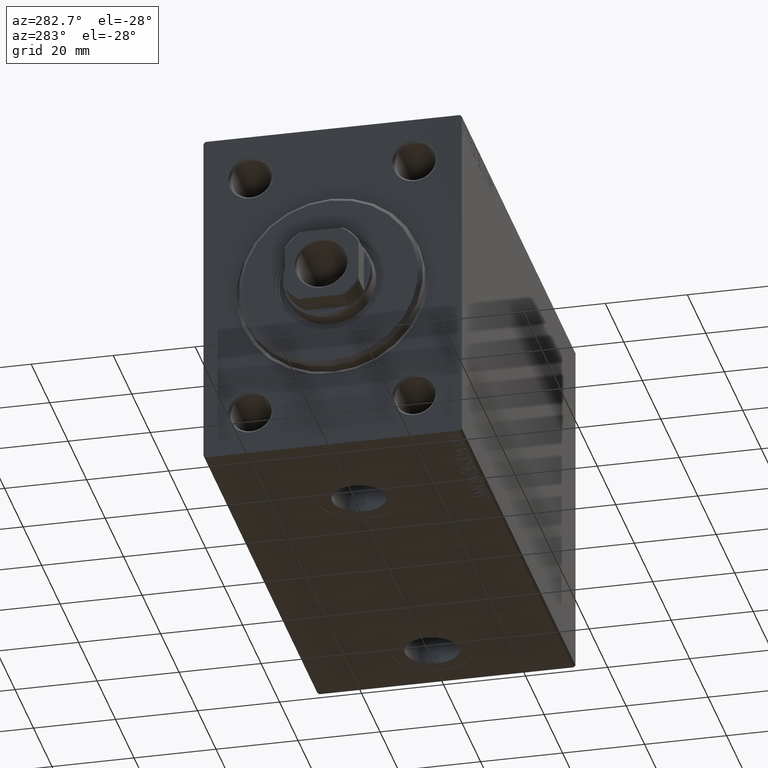
[diagram: clean part render]
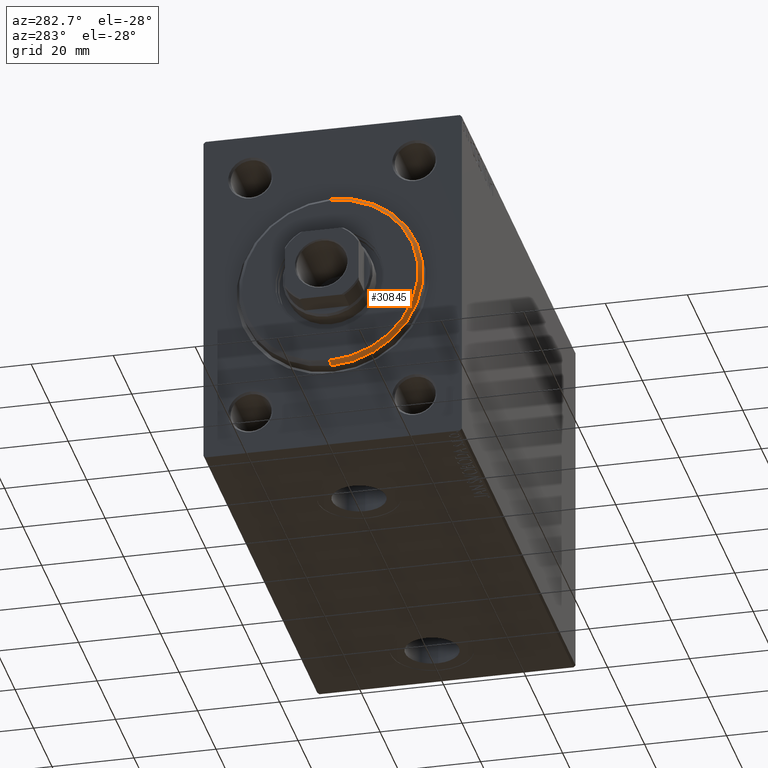
[diagram: same view with one face highlighted and labeled with its STEP entity id]
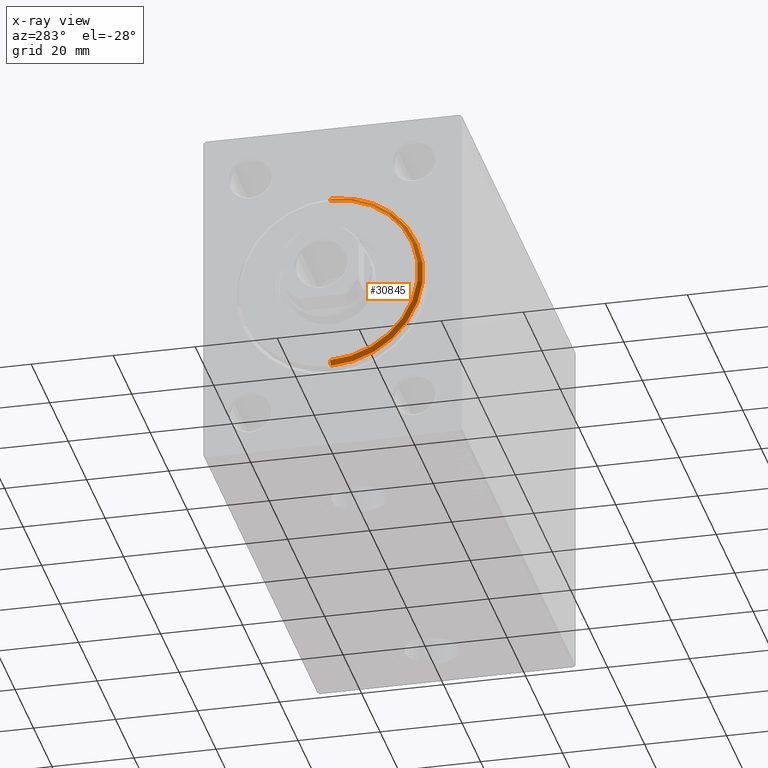
[diagram: x-ray of the same camera — body ghosted, the highlighted face saturated]
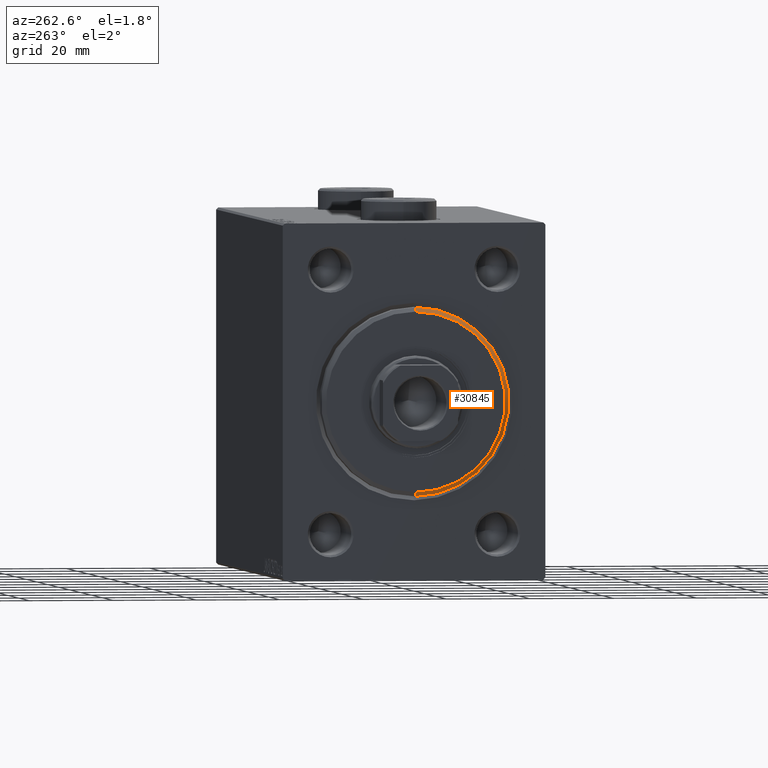
[diagram: same view with one face highlighted and labeled with its STEP entity id]
A machine part, auxiliary view. The second image highlights one B-rep face of the part: STEP entity #30845.
The next image is the same camera in x-ray: the body ghosted, the highlighted face saturated — about 0% of this face is hidden behind the body in this view.
A second angle (auxiliary view) of the same face is appended — the face is thin or edge-on in the first view.
In plain terms, the highlighted conical surface has half-angle 45 deg.
Its self-contained STEP definition (entity closure, byte-faithful):
#737 = ORIENTED_EDGE ( 'NONE', *, *, #12126, .F. ) ;
#1910 = LINE ( 'NONE', #2364, #21035 ) ;
#2302 = CARTESIAN_POINT ( 'NONE',  ( 1.999999999999999112, 2.755455298081545172E-15, -22.50000000000000355 ) ) ;
#2364 = CARTESIAN_POINT ( 'NONE',  ( 3.000000000000000000, 2.632990618166810024E-15, -21.50000000000000355 ) ) ;
#2630 = CARTESIAN_POINT ( 'NONE',  ( 3.000000000000000000, 0.000000000000000000, 0.000000000000000000 ) ) ;
#3177 = DIRECTION ( 'NONE',  ( 0.000000000000000000, 0.000000000000000000, 1.000000000000000000 ) ) ;
#3702 = DIRECTION ( 'NONE',  ( -1.000000000000000000, 0.000000000000000000, 0.000000000000000000 ) ) ;
#3743 = VERTEX_POINT ( 'NONE', #29197 ) ;
#4864 = VERTEX_POINT ( 'NONE', #25470 ) ;
#7084 = CARTESIAN_POINT ( 'NONE',  ( 3.000000000000000000, 0.000000000000000000, 0.000000000000000000 ) ) ;
#7151 = CARTESIAN_POINT ( 'NONE',  ( 1.999999999999999112, 0.000000000000000000, 0.000000000000000000 ) ) ;
#8538 = EDGE_CURVE ( 'NONE', #4864, #3743, #11522, .T. ) ;
#9426 = CIRCLE ( 'NONE', #21155, 22.50000000000000355 ) ;
#11522 = LINE ( 'NONE', #25555, #32104 ) ;
#12126 = EDGE_CURVE ( 'NONE', #3743, #33126, #9426, .T. ) ;
#13786 = AXIS2_PLACEMENT_3D ( 'NONE', #7084, #45557, #3177 ) ;
#16669 = DIRECTION ( 'NONE',  ( 1.000000000000000000, -0.000000000000000000, 0.000000000000000000 ) ) ;
#17114 = DIRECTION ( 'NONE',  ( 0.000000000000000000, 0.000000000000000000, -1.000000000000000000 ) ) ;
#18633 = VERTEX_POINT ( 'NONE', #20085 ) ;
#18750 = ORIENTED_EDGE ( 'NONE', *, *, #8538, .F. ) ;
#20085 = CARTESIAN_POINT ( 'NONE',  ( 3.000000000000000000, 2.694222958124177598E-15, -21.50000000000000355 ) ) ;
#21035 = VECTOR ( 'NONE', #30456, 1000.000000000000000 ) ;
#21155 = AXIS2_PLACEMENT_3D ( 'NONE', #7151, #3702, #39154 ) ;
#23783 = EDGE_CURVE ( 'NONE', #18633, #4864, #32673, .T. ) ;
#25470 = CARTESIAN_POINT ( 'NONE',  ( 3.000000000000000000, 0.000000000000000000, 21.50000000000000355 ) ) ;
#25555 = CARTESIAN_POINT ( 'NONE',  ( 3.000000000000000000, 0.000000000000000000, 21.50000000000000355 ) ) ;
#27541 = ORIENTED_EDGE ( 'NONE', *, *, #28582, .T. ) ;
#28582 = EDGE_CURVE ( 'NONE', #18633, #33126, #1910, .T. ) ;
#29197 = CARTESIAN_POINT ( 'NONE',  ( 1.999999999999999112, 0.000000000000000000, 22.50000000000000355 ) ) ;
#30456 = DIRECTION ( 'NONE',  ( -0.7071067811865487940, 8.659560562354919300E-17, -0.7071067811865463515 ) ) ;
#30845 = ADVANCED_FACE ( 'NONE', ( #34721 ), #32914, .T. ) ;
#32104 = VECTOR ( 'NONE', #33395, 1000.000000000000000 ) ;
#32673 = CIRCLE ( 'NONE', #45227, 21.50000000000000355 ) ;
#32914 = CONICAL_SURFACE ( 'NONE', #13786, 21.50000000000000355, 0.7853981633974466137 ) ;
#33126 = VERTEX_POINT ( 'NONE', #2302 ) ;
#33395 = DIRECTION ( 'NONE',  ( -0.7071067811865487940, 0.000000000000000000, 0.7071067811865463515 ) ) ;
#34233 = EDGE_LOOP ( 'NONE', ( #40994, #27541, #737, #18750 ) ) ;
#34721 = FACE_OUTER_BOUND ( 'NONE', #34233, .T. ) ;
#39154 = DIRECTION ( 'NONE',  ( 0.000000000000000000, 0.000000000000000000, -1.000000000000000000 ) ) ;
#40994 = ORIENTED_EDGE ( 'NONE', *, *, #23783, .F. ) ;
#45227 = AXIS2_PLACEMENT_3D ( 'NONE', #2630, #16669, #17114 ) ;
#45557 = DIRECTION ( 'NONE',  ( -1.000000000000000000, 0.000000000000000000, 0.000000000000000000 ) ) ;